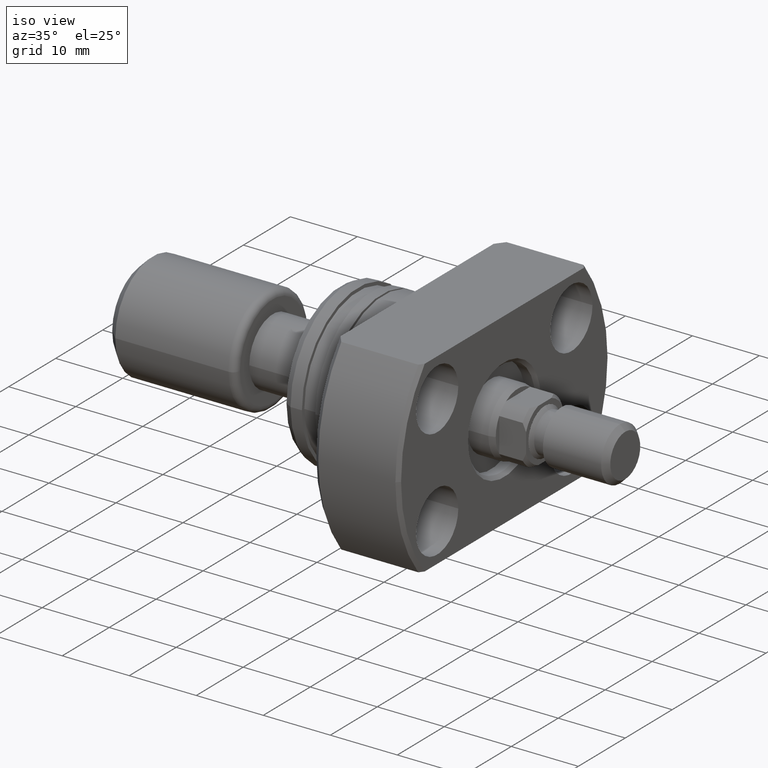
[diagram: clean part render]
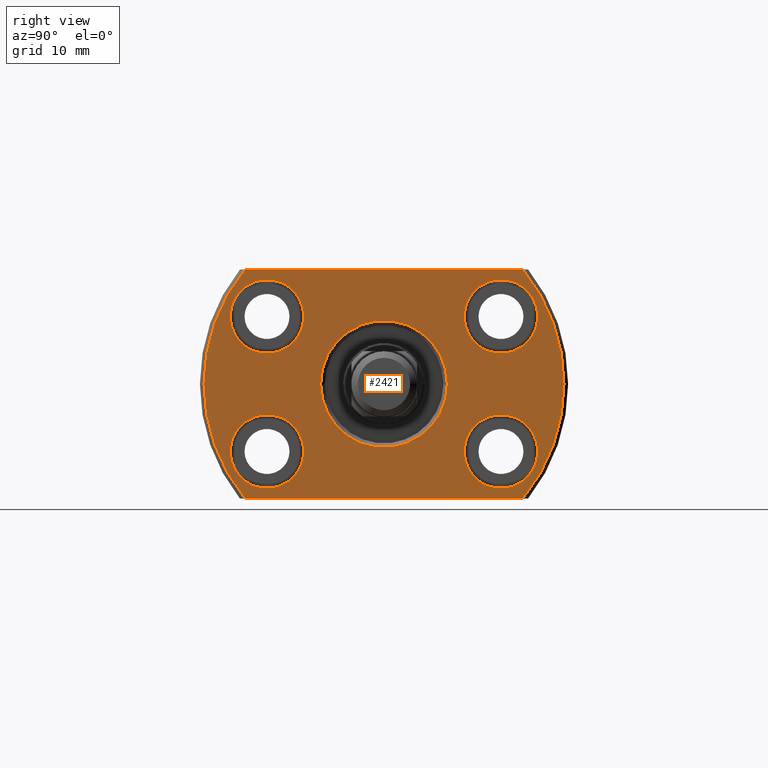
[diagram: tour spotlight — one face highlighted and labeled with its STEP entity id]
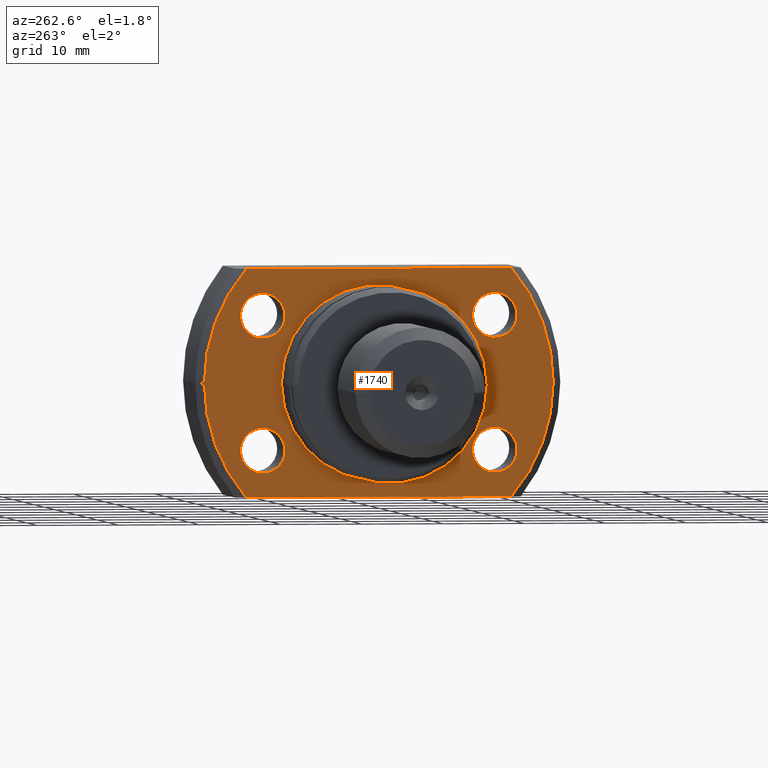
[diagram: tour spotlight — one face highlighted and labeled with its STEP entity id]
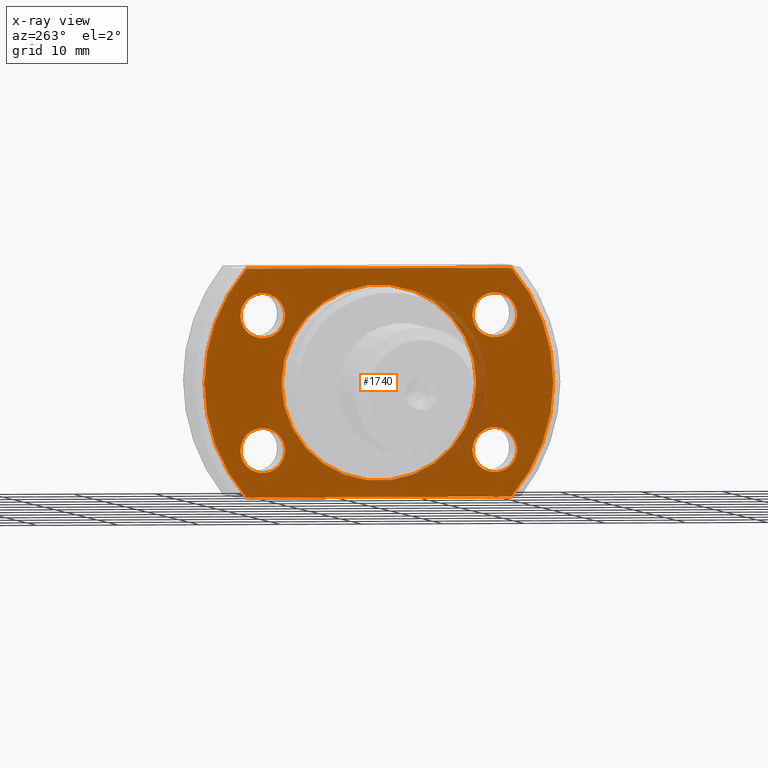
[diagram: x-ray of the same camera — body ghosted, this tour face saturated]
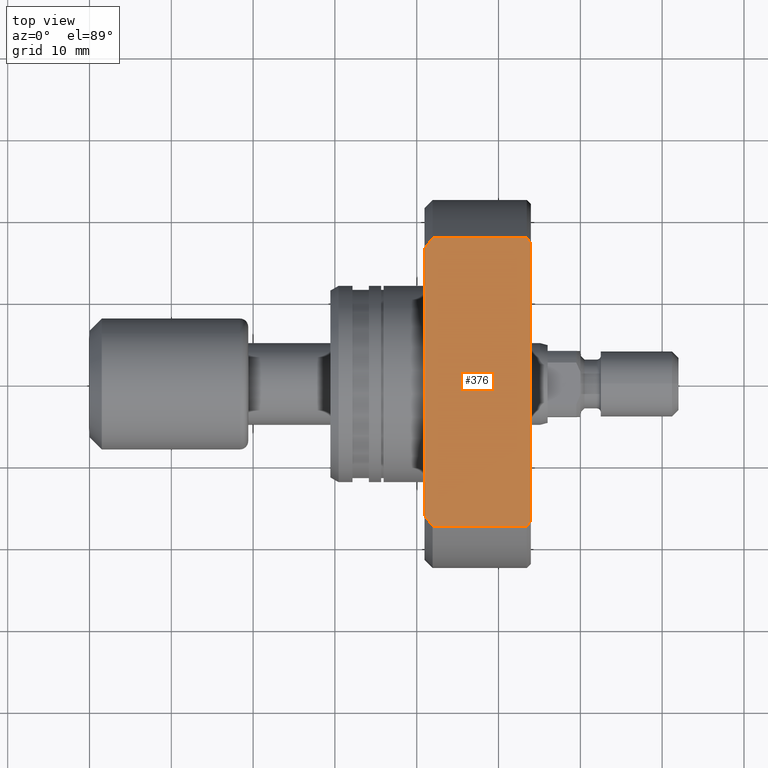
[diagram: tour spotlight — one face highlighted and labeled with its STEP entity id]
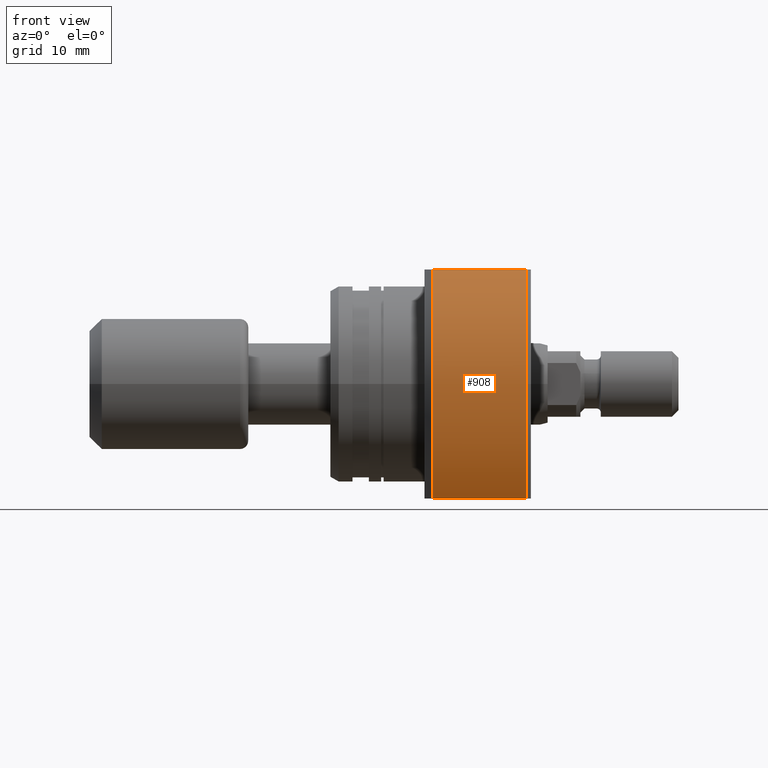
[diagram: tour spotlight — one face highlighted and labeled with its STEP entity id]
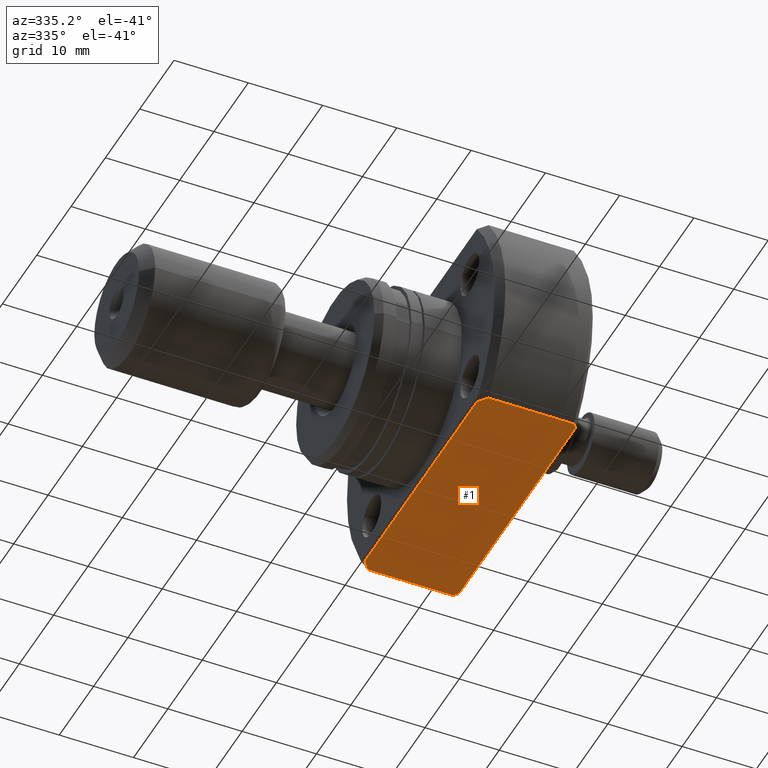
[diagram: tour spotlight — one face highlighted and labeled with its STEP entity id]
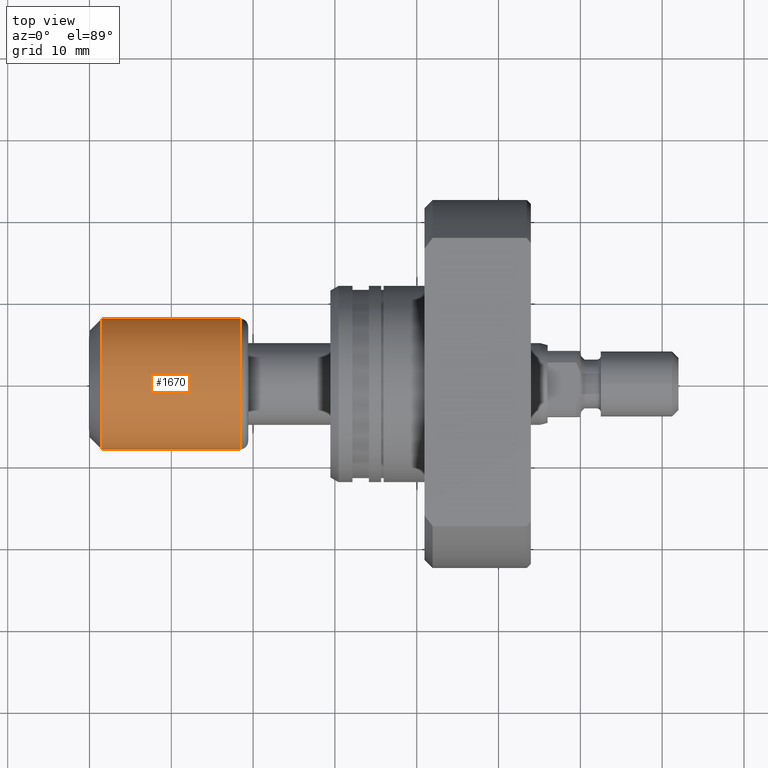
[diagram: tour spotlight — one face highlighted and labeled with its STEP entity id]
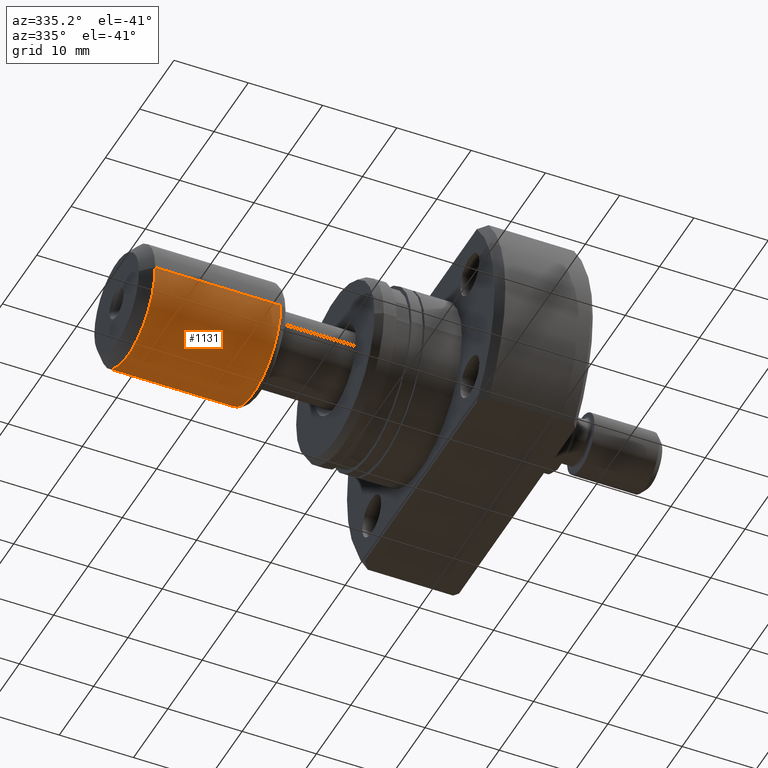
[diagram: tour spotlight — one face highlighted and labeled with its STEP entity id]
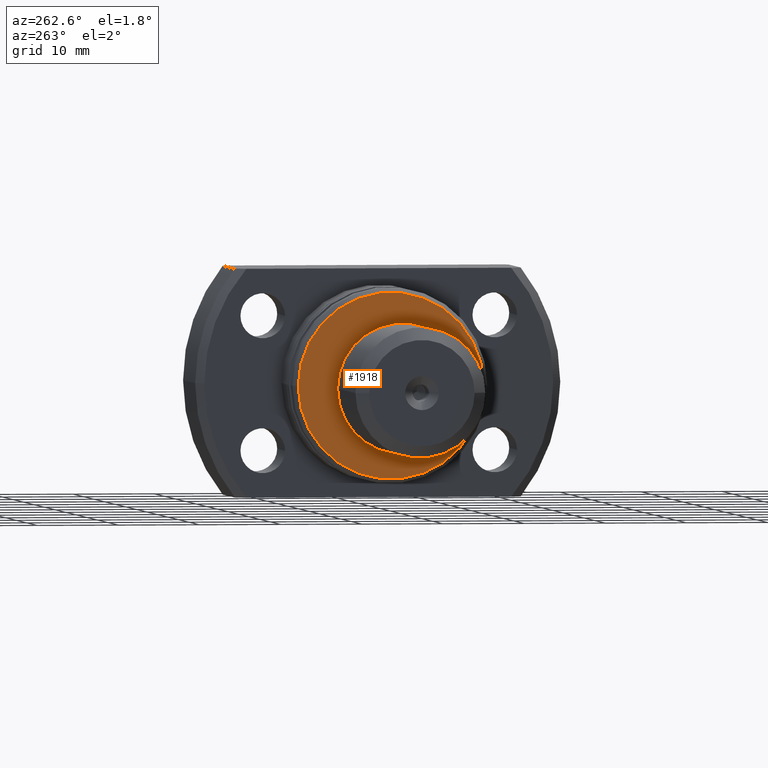
[diagram: tour spotlight — one face highlighted and labeled with its STEP entity id]
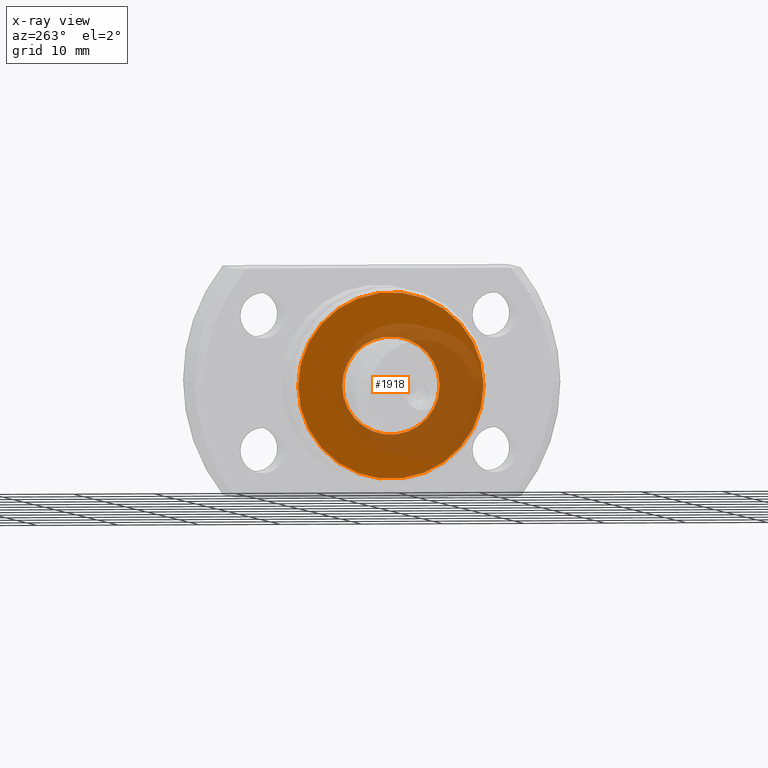
[diagram: x-ray of the same camera — body ghosted, this tour face saturated]
A machine part: a face-by-face anatomy tour. The part has 116 B-rep faces; the first image is the clean iso view, then the 8 largest visible faces are spotlighted one at a time (largest first), each with its STEP entity span.

Face 1 — right view, entity #2421. In plain terms, the highlighted planar face has unit normal (-1, -0, 0).
Definition (entity closure, byte-faithful):
#9 = ORIENTED_EDGE ( 'NONE', *, *, #1243, .F. ) ;
#14 = DIRECTION ( 'NONE',  ( 0.000000000000000000, -1.000000000000000000, 0.000000000000000000 ) ) ;
#65 = ORIENTED_EDGE ( 'NONE', *, *, #103, .F. ) ;
#69 = DIRECTION ( 'NONE',  ( 1.000000000000000000, -2.889258529047467066E-14, 0.000000000000000000 ) ) ;
#86 = CARTESIAN_POINT ( 'NONE',  ( 24.50000000000000000, -22.00000000000000000, 0.000000000000000000 ) ) ;
#93 = CARTESIAN_POINT ( 'NONE',  ( 24.49999999999958789, -14.30000000000070770, 8.250000000000000000 ) ) ;
#103 = EDGE_CURVE ( 'NONE', #1544, #2687, #2319, .T. ) ;
#163 = ORIENTED_EDGE ( 'NONE', *, *, #1608, .T. ) ;
#180 = CARTESIAN_POINT ( 'NONE',  ( 24.50000000000000000, -22.00000000000000000, 0.000000000000000000 ) ) ;
#189 = VERTEX_POINT ( 'NONE', #1052 ) ;
#202 = DIRECTION ( 'NONE',  ( 2.852656382717286247E-14, 1.000000000000000000, 0.000000000000000000 ) ) ;
#262 = CARTESIAN_POINT ( 'NONE',  ( 24.50000000000000000, 7.749999999998841815, 0.000000000000000000 ) ) ;
#293 = CARTESIAN_POINT ( 'NONE',  ( 24.50000000000000000, -7.071841973582562623E-13, 0.000000000000000000 ) ) ;
#369 = FACE_BOUND ( 'NONE', #2882, .T. ) ;
#381 = DIRECTION ( 'NONE',  ( 1.000000000000000000, -2.886466111666351885E-14, 0.000000000000000000 ) ) ;
#384 = ORIENTED_EDGE ( 'NONE', *, *, #1645, .F. ) ;
#401 = CIRCLE ( 'NONE', #3531, 4.500000000000205169 ) ;
#411 = DIRECTION ( 'NONE',  ( 0.000000000000000000, 1.000000000000000000, 0.000000000000000000 ) ) ;
#462 = AXIS2_PLACEMENT_3D ( 'NONE', #3212, #737, #1840 ) ;
#504 = EDGE_CURVE ( 'NONE', #3229, #3480, #551, .T. ) ;
#551 = CIRCLE ( 'NONE', #1263, 4.500000000000205169 ) ;
#564 = DIRECTION ( 'NONE',  ( 2.852656382717284985E-14, 1.000000000000000000, 0.000000000000000000 ) ) ;
#616 = CARTESIAN_POINT ( 'NONE',  ( 24.50000000000041211, 14.29999999999929194, 8.250000000000000000 ) ) ;
#621 = CIRCLE ( 'NONE', #2445, 4.500000000000205169 ) ;
#622 = DIRECTION ( 'NONE',  ( 1.000000000000000000, -2.889258529047467066E-14, 0.000000000000000000 ) ) ;
#625 = CIRCLE ( 'NONE', #3463, 4.500000000000205169 ) ;
#737 = DIRECTION ( 'NONE',  ( 1.000000000000000000, -2.889258529047467066E-14, 0.000000000000000000 ) ) ;
#807 = CARTESIAN_POINT ( 'NONE',  ( 24.50000000000041211, 14.29999999999929194, 8.250000000000000000 ) ) ;
#863 = LINE ( 'NONE', #3449, #3335 ) ;
#944 = FACE_OUTER_BOUND ( 'NONE', #2623, .T. ) ;
#948 = DIRECTION ( 'NONE',  ( 2.852656382717286247E-14, 1.000000000000000000, 0.000000000000000000 ) ) ;
#956 = EDGE_LOOP ( 'NONE', ( #1753, #1607 ) ) ;
#960 = DIRECTION ( 'NONE',  ( 2.852656382717286247E-14, 1.000000000000000000, 0.000000000000000000 ) ) ;
#978 = AXIS2_PLACEMENT_3D ( 'NONE', #3346, #1951, #2192 ) ;
#980 = CARTESIAN_POINT ( 'NONE',  ( 24.50000000000000000, 1.224646799150062051E-17, 0.000000000000000000 ) ) ;
#1035 = DIRECTION ( 'NONE',  ( 0.000000000000000000, 1.000000000000000000, 0.000000000000000000 ) ) ;
#1052 = CARTESIAN_POINT ( 'NONE',  ( 24.50000000000028422, 9.799999999999087663, -8.250000000000000000 ) ) ;
#1094 = VECTOR ( 'NONE', #1707, 1000.000000000000000 ) ;
#1095 = AXIS2_PLACEMENT_3D ( 'NONE', #1861, #2137, #411 ) ;
#1178 = ORIENTED_EDGE ( 'NONE', *, *, #1890, .T. ) ;
#1226 = CARTESIAN_POINT ( 'NONE',  ( 24.49999999999958789, -14.30000000000070770, -8.250000000000000000 ) ) ;
#1243 = EDGE_CURVE ( 'NONE', #1784, #189, #621, .T. ) ;
#1259 = VERTEX_POINT ( 'NONE', #3064 ) ;
#1261 = DIRECTION ( 'NONE',  ( 0.000000000000000000, -1.000000000000000000, 0.000000000000000000 ) ) ;
#1263 = AXIS2_PLACEMENT_3D ( 'NONE', #616, #381, #2955 ) ;
#1294 = CARTESIAN_POINT ( 'NONE',  ( 24.50000000000000000, 16.97056274847713553, 14.00000000000000355 ) ) ;
#1295 = CARTESIAN_POINT ( 'NONE',  ( 24.49999999999945999, -18.80000000000091376, 8.250000000000000000 ) ) ;
#1311 = CARTESIAN_POINT ( 'NONE',  ( 24.50000000000028422, 9.799999999999087663, 8.250000000000000000 ) ) ;
#1316 = EDGE_CURVE ( 'NONE', #1867, #3473, #1909, .T. ) ;
#1328 = CARTESIAN_POINT ( 'NONE',  ( 24.49999999999945999, -18.80000000000091376, -8.250000000000000000 ) ) ;
#1336 = CIRCLE ( 'NONE', #2157, 4.500000000000206946 ) ;
#1354 = EDGE_LOOP ( 'NONE', ( #9, #384 ) ) ;
#1375 = DIRECTION ( 'NONE',  ( 2.852656382717286247E-14, 1.000000000000000000, 0.000000000000000000 ) ) ;
#1436 = CARTESIAN_POINT ( 'NONE',  ( 24.50000000000000000, -22.00000000000000000, -14.00000000000000355 ) ) ;
#1481 = EDGE_CURVE ( 'NONE', #1760, #3456, #3398, .T. ) ;
#1488 = ORIENTED_EDGE ( 'NONE', *, *, #1481, .F. ) ;
#1494 = FACE_BOUND ( 'NONE', #2772, .T. ) ;
#1513 = AXIS2_PLACEMENT_3D ( 'NONE', #1226, #1716, #2868 ) ;
#1543 = DIRECTION ( 'NONE',  ( -1.000000000000000000, -4.998558363877804092E-19, 0.000000000000000000 ) ) ;
#1544 = VERTEX_POINT ( 'NONE', #1295 ) ;
#1545 = FACE_BOUND ( 'NONE', #3107, .T. ) ;
#1566 = AXIS2_PLACEMENT_3D ( 'NONE', #293, #2538, #14 ) ;
#1589 = ORIENTED_EDGE ( 'NONE', *, *, #3255, .F. ) ;
#1607 = ORIENTED_EDGE ( 'NONE', *, *, #3620, .F. ) ;
#1608 = EDGE_CURVE ( 'NONE', #2708, #3431, #2681, .T. ) ;
#1645 = EDGE_CURVE ( 'NONE', #189, #1784, #3052, .T. ) ;
#1682 = CARTESIAN_POINT ( 'NONE',  ( 24.50000000000000000, 16.97056274847713553, -14.00000000000000355 ) ) ;
#1707 = DIRECTION ( 'NONE',  ( -4.998558363877804092E-19, 1.000000000000000000, -0.000000000000000000 ) ) ;
#1716 = DIRECTION ( 'NONE',  ( 1.000000000000000000, -2.889258529047467066E-14, 0.000000000000000000 ) ) ;
#1734 = CIRCLE ( 'NONE', #1566, 7.749999999999547029 ) ;
#1753 = ORIENTED_EDGE ( 'NONE', *, *, #504, .F. ) ;
#1760 = VERTEX_POINT ( 'NONE', #1328 ) ;
#1784 = VERTEX_POINT ( 'NONE', #3341 ) ;
#1816 = CARTESIAN_POINT ( 'NONE',  ( 24.50000000000000000, -7.071841973582562623E-13, 0.000000000000000000 ) ) ;
#1840 = DIRECTION ( 'NONE',  ( 2.852656382717286247E-14, 1.000000000000000000, 0.000000000000000000 ) ) ;
#1861 = CARTESIAN_POINT ( 'NONE',  ( 24.50000000000000000, 1.224646799150062051E-17, 0.000000000000000000 ) ) ;
#1867 = VERTEX_POINT ( 'NONE', #2660 ) ;
#1890 = EDGE_CURVE ( 'NONE', #2648, #2207, #3581, .T. ) ;
#1909 = CIRCLE ( 'NONE', #978, 22.00000000000000000 ) ;
#1910 = ORIENTED_EDGE ( 'NONE', *, *, #1316, .T. ) ;
#1951 = DIRECTION ( 'NONE',  ( 1.000000000000000000, 4.998558363877804092E-19, -0.000000000000000000 ) ) ;
#2010 = EDGE_CURVE ( 'NONE', #2207, #2648, #1734, .T. ) ;
#2015 = ORIENTED_EDGE ( 'NONE', *, *, #2308, .F. ) ;
#2063 = DIRECTION ( 'NONE',  ( 4.998558363877804092E-19, -1.000000000000000000, 0.000000000000000000 ) ) ;
#2096 = AXIS2_PLACEMENT_3D ( 'NONE', #980, #2374, #1035 ) ;
#2116 = FACE_BOUND ( 'NONE', #956, .T. ) ;
#2137 = DIRECTION ( 'NONE',  ( 1.000000000000000000, 4.998558363877804092E-19, -0.000000000000000000 ) ) ;
#2157 = AXIS2_PLACEMENT_3D ( 'NONE', #3095, #622, #564 ) ;
#2192 = DIRECTION ( 'NONE',  ( 0.000000000000000000, 1.000000000000000000, 0.000000000000000000 ) ) ;
#2207 = VERTEX_POINT ( 'NONE', #3641 ) ;
#2222 = CIRCLE ( 'NONE', #2096, 22.00000000000000000 ) ;
#2239 = EDGE_CURVE ( 'NONE', #1259, #2708, #3132, .T. ) ;
#2308 = EDGE_CURVE ( 'NONE', #3456, #1760, #1336, .T. ) ;
#2309 = DIRECTION ( 'NONE',  ( 1.000000000000000000, -2.889258529047467066E-14, 0.000000000000000000 ) ) ;
#2319 = CIRCLE ( 'NONE', #2978, 4.500000000000205169 ) ;
#2340 = FACE_BOUND ( 'NONE', #1354, .T. ) ;
#2347 = EDGE_CURVE ( 'NONE', #1867, #3431, #863, .T. ) ;
#2374 = DIRECTION ( 'NONE',  ( 1.000000000000000000, 4.998558363877804092E-19, -0.000000000000000000 ) ) ;
#2421 = ADVANCED_FACE ( 'NONE', ( #369, #2116, #1545, #1494, #2340, #944 ), #2959, .F. ) ;
#2435 = CARTESIAN_POINT ( 'NONE',  ( 24.50000000000041211, 14.29999999999929194, -8.250000000000000000 ) ) ;
#2437 = ORIENTED_EDGE ( 'NONE', *, *, #2239, .T. ) ;
#2445 = AXIS2_PLACEMENT_3D ( 'NONE', #2435, #2727, #202 ) ;
#2448 = AXIS2_PLACEMENT_3D ( 'NONE', #1816, #1543, #1261 ) ;
#2484 = DIRECTION ( 'NONE',  ( 1.000000000000000000, -2.886466111666351885E-14, 0.000000000000000000 ) ) ;
#2538 = DIRECTION ( 'NONE',  ( -1.000000000000000000, -4.998558363877804092E-19, 0.000000000000000000 ) ) ;
#2560 = ORIENTED_EDGE ( 'NONE', *, *, #2010, .T. ) ;
#2595 = CARTESIAN_POINT ( 'NONE',  ( 24.49999999999958789, -14.30000000000070770, 8.250000000000000000 ) ) ;
#2623 = EDGE_LOOP ( 'NONE', ( #2972, #1910, #3026, #2437, #163 ) ) ;
#2648 = VERTEX_POINT ( 'NONE', #262 ) ;
#2660 = CARTESIAN_POINT ( 'NONE',  ( 24.50000000000000000, -16.97056274847713553, 14.00000000000000355 ) ) ;
#2681 = CIRCLE ( 'NONE', #1095, 22.00000000000000000 ) ;
#2687 = VERTEX_POINT ( 'NONE', #3352 ) ;
#2708 = VERTEX_POINT ( 'NONE', #1682 ) ;
#2727 = DIRECTION ( 'NONE',  ( 1.000000000000000000, -2.889258529047467066E-14, 0.000000000000000000 ) ) ;
#2772 = EDGE_LOOP ( 'NONE', ( #2015, #1488 ) ) ;
#2848 = CARTESIAN_POINT ( 'NONE',  ( 24.50000000000054357, 18.79999999999949623, 8.250000000000000000 ) ) ;
#2860 = DIRECTION ( 'NONE',  ( -0.000000000000000000, 1.000000000000000000, 0.000000000000000000 ) ) ;
#2868 = DIRECTION ( 'NONE',  ( 2.852656382717284985E-14, 1.000000000000000000, 0.000000000000000000 ) ) ;
#2882 = EDGE_LOOP ( 'NONE', ( #1178, #2560 ) ) ;
#2941 = DIRECTION ( 'NONE',  ( -1.000000000000000000, -4.998558363877804092E-19, 0.000000000000000000 ) ) ;
#2955 = DIRECTION ( 'NONE',  ( 2.852656382717286247E-14, 1.000000000000000000, 0.000000000000000000 ) ) ;
#2959 = PLANE ( 'NONE',  #2991 ) ;
#2972 = ORIENTED_EDGE ( 'NONE', *, *, #2347, .F. ) ;
#2978 = AXIS2_PLACEMENT_3D ( 'NONE', #2595, #69, #960 ) ;
#2991 = AXIS2_PLACEMENT_3D ( 'NONE', #86, #2941, #2063 ) ;
#2998 = CARTESIAN_POINT ( 'NONE',  ( 24.49999999999971578, -9.800000000000501643, -8.250000000000000000 ) ) ;
#3026 = ORIENTED_EDGE ( 'NONE', *, *, #3343, .T. ) ;
#3052 = CIRCLE ( 'NONE', #462, 4.500000000000205169 ) ;
#3064 = CARTESIAN_POINT ( 'NONE',  ( 24.50000000000000000, -16.97056274847713553, -14.00000000000000355 ) ) ;
#3095 = CARTESIAN_POINT ( 'NONE',  ( 24.49999999999958789, -14.30000000000070770, -8.250000000000000000 ) ) ;
#3107 = EDGE_LOOP ( 'NONE', ( #1589, #65 ) ) ;
#3132 = LINE ( 'NONE', #1436, #1094 ) ;
#3212 = CARTESIAN_POINT ( 'NONE',  ( 24.50000000000041211, 14.29999999999929194, -8.250000000000000000 ) ) ;
#3229 = VERTEX_POINT ( 'NONE', #2848 ) ;
#3255 = EDGE_CURVE ( 'NONE', #2687, #1544, #401, .T. ) ;
#3335 = VECTOR ( 'NONE', #2860, 1000.000000000000000 ) ;
#3341 = CARTESIAN_POINT ( 'NONE',  ( 24.50000000000054357, 18.79999999999949623, -8.250000000000000000 ) ) ;
#3343 = EDGE_CURVE ( 'NONE', #3473, #1259, #2222, .T. ) ;
#3346 = CARTESIAN_POINT ( 'NONE',  ( 24.50000000000000000, 1.224646799150062051E-17, 0.000000000000000000 ) ) ;
#3352 = CARTESIAN_POINT ( 'NONE',  ( 24.49999999999971578, -9.800000000000503420, 8.250000000000000000 ) ) ;
#3398 = CIRCLE ( 'NONE', #1513, 4.500000000000206946 ) ;
#3431 = VERTEX_POINT ( 'NONE', #1294 ) ;
#3449 = CARTESIAN_POINT ( 'NONE',  ( 24.50000000000000000, 17.61391495380915018, 14.00000000000000355 ) ) ;
#3456 = VERTEX_POINT ( 'NONE', #2998 ) ;
#3463 = AXIS2_PLACEMENT_3D ( 'NONE', #807, #2484, #1375 ) ;
#3473 = VERTEX_POINT ( 'NONE', #180 ) ;
#3480 = VERTEX_POINT ( 'NONE', #1311 ) ;
#3531 = AXIS2_PLACEMENT_3D ( 'NONE', #93, #2309, #948 ) ;
#3581 = CIRCLE ( 'NONE', #2448, 7.749999999999547029 ) ;
#3620 = EDGE_CURVE ( 'NONE', #3480, #3229, #625, .T. ) ;
#3641 = CARTESIAN_POINT ( 'NONE',  ( 24.50000000000000000, -7.750000000000701661, 9.491012693391979898E-16 ) ) ;

Face 2 — auxiliary view, entity #1740. An x-ray twin of the same camera follows (body ghosted, this face saturated) — the face is partly hidden behind the body. In plain terms, the highlighted planar face has unit normal (1, 0, 0).
Definition (entity closure, byte-faithful):
#40 = CARTESIAN_POINT ( 'NONE',  ( 11.49999999999978506, -14.30000000000032401, -8.249999999999996447 ) ) ;
#53 = LINE ( 'NONE', #3396, #1975 ) ;
#62 = CARTESIAN_POINT ( 'NONE',  ( 11.49999999999978684, -16.31716887208061095, -14.00000000000000355 ) ) ;
#74 = EDGE_CURVE ( 'NONE', #2611, #2474, #2859, .T. ) ;
#80 = CIRCLE ( 'NONE', #845, 11.99999999999999467 ) ;
#129 = CARTESIAN_POINT ( 'NONE',  ( 11.49999999999978861, 5.748342118459368684E-18, 0.000000000000000000 ) ) ;
#130 = CARTESIAN_POINT ( 'NONE',  ( 11.49999999999978506, -11.99999999999999467, -14.00000000000000355 ) ) ;
#136 = EDGE_CURVE ( 'NONE', #1016, #1074, #909, .T. ) ;
#142 = ORIENTED_EDGE ( 'NONE', *, *, #1112, .T. ) ;
#171 = ORIENTED_EDGE ( 'NONE', *, *, #1428, .T. ) ;
#236 = EDGE_CURVE ( 'NONE', #1939, #2939, #80, .T. ) ;
#252 = FACE_OUTER_BOUND ( 'NONE', #3199, .T. ) ;
#281 = EDGE_CURVE ( 'NONE', #1478, #2377, #2378, .T. ) ;
#317 = CARTESIAN_POINT ( 'NONE',  ( 11.49999999999978506, -11.55000000000032756, 8.250000000000003553 ) ) ;
#352 = VERTEX_POINT ( 'NONE', #1432 ) ;
#398 = CARTESIAN_POINT ( 'NONE',  ( 11.49999999999978506, 17.04999999999967031, -8.249999999999996447 ) ) ;
#438 = CARTESIAN_POINT ( 'NONE',  ( 11.49999999999978861, 21.49999999999992184, 0.000000000000000000 ) ) ;
#444 = DIRECTION ( 'NONE',  ( 1.000000000000000000, 4.998558363877804092E-19, -0.000000000000000000 ) ) ;
#466 = ORIENTED_EDGE ( 'NONE', *, *, #236, .T. ) ;
#473 = DIRECTION ( 'NONE',  ( 0.000000000000000000, 1.000000000000000000, 0.000000000000000000 ) ) ;
#478 = DIRECTION ( 'NONE',  ( 1.000000000000000000, 4.998558363877804092E-19, -0.000000000000000000 ) ) ;
#485 = CARTESIAN_POINT ( 'NONE',  ( 11.49999999999977973, 5.748342118459364061E-18, 0.000000000000000000 ) ) ;
#491 = ORIENTED_EDGE ( 'NONE', *, *, #1547, .F. ) ;
#503 = AXIS2_PLACEMENT_3D ( 'NONE', #129, #478, #3538 ) ;
#592 = DIRECTION ( 'NONE',  ( 0.000000000000000000, 1.000000000000000000, 0.000000000000000000 ) ) ;
#602 = CARTESIAN_POINT ( 'NONE',  ( 11.49999999999977973, 11.99999999999999467, 0.000000000000000000 ) ) ;
#607 = CARTESIAN_POINT ( 'NONE',  ( 11.49999999999978506, 14.29999999999967208, 8.250000000000003553 ) ) ;
#610 = ORIENTED_EDGE ( 'NONE', *, *, #136, .T. ) ;
#702 = DIRECTION ( 'NONE',  ( 0.000000000000000000, 1.000000000000000000, 0.000000000000000000 ) ) ;
#771 = CARTESIAN_POINT ( 'NONE',  ( 11.49999999999977973, 5.748342118459364061E-18, 0.000000000000000000 ) ) ;
#796 = AXIS2_PLACEMENT_3D ( 'NONE', #3297, #3055, #1851 ) ;
#826 = ORIENTED_EDGE ( 'NONE', *, *, #74, .F. ) ;
#845 = AXIS2_PLACEMENT_3D ( 'NONE', #485, #1837, #473 ) ;
#870 = VERTEX_POINT ( 'NONE', #1075 ) ;
#909 = CIRCLE ( 'NONE', #3323, 2.749999999999999112 ) ;
#973 = CARTESIAN_POINT ( 'NONE',  ( 11.49999999999978506, -17.05000000000032756, 8.250000000000003553 ) ) ;
#975 = DIRECTION ( 'NONE',  ( 0.000000000000000000, 1.000000000000000000, 0.000000000000000000 ) ) ;
#1016 = VERTEX_POINT ( 'NONE', #3141 ) ;
#1027 = EDGE_LOOP ( 'NONE', ( #1761, #610 ) ) ;
#1074 = VERTEX_POINT ( 'NONE', #398 ) ;
#1075 = CARTESIAN_POINT ( 'NONE',  ( 11.49999999999978506, -17.05000000000032045, -8.249999999999996447 ) ) ;
#1105 = FACE_BOUND ( 'NONE', #2765, .T. ) ;
#1112 = EDGE_CURVE ( 'NONE', #2611, #2763, #2951, .T. ) ;
#1119 = ORIENTED_EDGE ( 'NONE', *, *, #1605, .F. ) ;
#1125 = EDGE_LOOP ( 'NONE', ( #2462, #1372 ) ) ;
#1196 = VERTEX_POINT ( 'NONE', #2124 ) ;
#1219 = DIRECTION ( 'NONE',  ( 1.000000000000000000, 4.998558363877804092E-19, -0.000000000000000000 ) ) ;
#1225 = DIRECTION ( 'NONE',  ( 0.000000000000000000, 1.000000000000000000, 0.000000000000000000 ) ) ;
#1267 = DIRECTION ( 'NONE',  ( 1.000000000000000000, 4.998558363877804092E-19, -0.000000000000000000 ) ) ;
#1275 = CARTESIAN_POINT ( 'NONE',  ( 11.49999999999978861, 5.748342118459368684E-18, 0.000000000000000000 ) ) ;
#1281 = CIRCLE ( 'NONE', #3225, 2.750000000000000888 ) ;
#1372 = ORIENTED_EDGE ( 'NONE', *, *, #2989, .T. ) ;
#1376 = DIRECTION ( 'NONE',  ( 0.000000000000000000, 1.000000000000000000, 0.000000000000000000 ) ) ;
#1380 = DIRECTION ( 'NONE',  ( 1.000000000000000000, 4.998558363877804092E-19, -0.000000000000000000 ) ) ;
#1407 = ORIENTED_EDGE ( 'NONE', *, *, #1969, .F. ) ;
#1428 = EDGE_CURVE ( 'NONE', #3342, #1196, #2449, .T. ) ;
#1432 = CARTESIAN_POINT ( 'NONE',  ( 11.49999999999978506, -11.55000000000032756, -8.249999999999996447 ) ) ;
#1478 = VERTEX_POINT ( 'NONE', #317 ) ;
#1495 = DIRECTION ( 'NONE',  ( 0.000000000000000000, 1.000000000000000000, 0.000000000000000000 ) ) ;
#1515 = CARTESIAN_POINT ( 'NONE',  ( 11.49999999999978506, 14.29999999999967031, -8.249999999999996447 ) ) ;
#1547 = EDGE_CURVE ( 'NONE', #2915, #2763, #2153, .T. ) ;
#1548 = CARTESIAN_POINT ( 'NONE',  ( 11.49999999999978506, 11.54999999999967208, 8.250000000000003553 ) ) ;
#1605 = EDGE_CURVE ( 'NONE', #2474, #3637, #3336, .T. ) ;
#1687 = CIRCLE ( 'NONE', #1866, 2.749999999999997335 ) ;
#1717 = EDGE_CURVE ( 'NONE', #2939, #1939, #3594, .T. ) ;
#1729 = CARTESIAN_POINT ( 'NONE',  ( 11.49999999999978506, 14.29999999999967208, 8.250000000000003553 ) ) ;
#1740 = ADVANCED_FACE ( 'NONE', ( #3319, #1105, #1965, #3593, #2251, #252 ), #3623, .F. ) ;
#1761 = ORIENTED_EDGE ( 'NONE', *, *, #2527, .T. ) ;
#1837 = DIRECTION ( 'NONE',  ( 1.000000000000000000, 4.998558363877804092E-19, -0.000000000000000000 ) ) ;
#1851 = DIRECTION ( 'NONE',  ( 0.000000000000000000, 1.000000000000000000, 0.000000000000000000 ) ) ;
#1866 = AXIS2_PLACEMENT_3D ( 'NONE', #1950, #1380, #2985 ) ;
#1868 = ORIENTED_EDGE ( 'NONE', *, *, #1717, .T. ) ;
#1887 = DIRECTION ( 'NONE',  ( 0.000000000000000000, 1.000000000000000000, 0.000000000000000000 ) ) ;
#1914 = AXIS2_PLACEMENT_3D ( 'NONE', #1275, #444, #702 ) ;
#1920 = CIRCLE ( 'NONE', #2398, 2.749999999999997335 ) ;
#1931 = DIRECTION ( 'NONE',  ( 1.000000000000000000, 4.998558363877804092E-19, -0.000000000000000000 ) ) ;
#1939 = VERTEX_POINT ( 'NONE', #602 ) ;
#1950 = CARTESIAN_POINT ( 'NONE',  ( 11.49999999999978506, -14.30000000000032401, -8.249999999999996447 ) ) ;
#1960 = EDGE_CURVE ( 'NONE', #2377, #1478, #2867, .T. ) ;
#1965 = FACE_BOUND ( 'NONE', #1125, .T. ) ;
#1969 = EDGE_CURVE ( 'NONE', #3637, #2915, #53, .T. ) ;
#1975 = VECTOR ( 'NONE', #2351, 1000.000000000000000 ) ;
#1985 = ORIENTED_EDGE ( 'NONE', *, *, #3123, .T. ) ;
#1987 = AXIS2_PLACEMENT_3D ( 'NONE', #771, #1931, #1376 ) ;
#1990 = DIRECTION ( 'NONE',  ( 1.000000000000000000, 4.998558363877804092E-19, -0.000000000000000000 ) ) ;
#2008 = DIRECTION ( 'NONE',  ( 1.000000000000000000, 4.998558363877804092E-19, -0.000000000000000000 ) ) ;
#2021 = AXIS2_PLACEMENT_3D ( 'NONE', #2902, #1219, #1495 ) ;
#2124 = CARTESIAN_POINT ( 'NONE',  ( 11.49999999999978506, 17.04999999999967386, 8.250000000000003553 ) ) ;
#2152 = AXIS2_PLACEMENT_3D ( 'NONE', #2752, #2783, #2485 ) ;
#2153 = CIRCLE ( 'NONE', #503, 21.49999999999992184 ) ;
#2251 = FACE_BOUND ( 'NONE', #3058, .T. ) ;
#2275 = DIRECTION ( 'NONE',  ( 1.000000000000000000, 4.998558363877804092E-19, -0.000000000000000000 ) ) ;
#2323 = DIRECTION ( 'NONE',  ( 1.000000000000000000, 4.998558363877804092E-19, -0.000000000000000000 ) ) ;
#2351 = DIRECTION ( 'NONE',  ( 4.998558363877804092E-19, -1.000000000000000000, 0.000000000000000000 ) ) ;
#2362 = CARTESIAN_POINT ( 'NONE',  ( 11.49999999999977973, -11.99999999999999467, 1.469576158976823356E-15 ) ) ;
#2377 = VERTEX_POINT ( 'NONE', #973 ) ;
#2378 = CIRCLE ( 'NONE', #3451, 2.750000000000000888 ) ;
#2398 = AXIS2_PLACEMENT_3D ( 'NONE', #40, #2008, #3138 ) ;
#2412 = DIRECTION ( 'NONE',  ( 1.000000000000000000, 4.998558363877804092E-19, -0.000000000000000000 ) ) ;
#2449 = CIRCLE ( 'NONE', #3640, 2.750000000000000888 ) ;
#2462 = ORIENTED_EDGE ( 'NONE', *, *, #3300, .T. ) ;
#2474 = VERTEX_POINT ( 'NONE', #438 ) ;
#2485 = DIRECTION ( 'NONE',  ( -4.998558363877804092E-19, 1.000000000000000000, 0.000000000000000000 ) ) ;
#2518 = ORIENTED_EDGE ( 'NONE', *, *, #1960, .T. ) ;
#2527 = EDGE_CURVE ( 'NONE', #1074, #1016, #3039, .T. ) ;
#2581 = CARTESIAN_POINT ( 'NONE',  ( 11.49999999999978506, -14.30000000000032756, 8.250000000000003553 ) ) ;
#2611 = VERTEX_POINT ( 'NONE', #3585 ) ;
#2655 = DIRECTION ( 'NONE',  ( 4.998558363877804092E-19, -1.000000000000000000, 0.000000000000000000 ) ) ;
#2672 = CARTESIAN_POINT ( 'NONE',  ( 11.49999999999978684, -16.31716887208061095, 14.00000000000000355 ) ) ;
#2675 = AXIS2_PLACEMENT_3D ( 'NONE', #2581, #1990, #2956 ) ;
#2752 = CARTESIAN_POINT ( 'NONE',  ( 11.49999999999978506, -11.99999999999999467, 0.000000000000000000 ) ) ;
#2763 = VERTEX_POINT ( 'NONE', #62 ) ;
#2765 = EDGE_LOOP ( 'NONE', ( #3269, #2518 ) ) ;
#2783 = DIRECTION ( 'NONE',  ( 1.000000000000000000, 4.998558363877804092E-19, -0.000000000000000000 ) ) ;
#2806 = VECTOR ( 'NONE', #2655, 1000.000000000000000 ) ;
#2859 = CIRCLE ( 'NONE', #2021, 21.49999999999992184 ) ;
#2867 = CIRCLE ( 'NONE', #2675, 2.750000000000000888 ) ;
#2902 = CARTESIAN_POINT ( 'NONE',  ( 11.49999999999978861, 5.748342118459368684E-18, 0.000000000000000000 ) ) ;
#2915 = VERTEX_POINT ( 'NONE', #2672 ) ;
#2939 = VERTEX_POINT ( 'NONE', #2362 ) ;
#2951 = LINE ( 'NONE', #130, #2806 ) ;
#2956 = DIRECTION ( 'NONE',  ( 0.000000000000000000, 1.000000000000000000, 0.000000000000000000 ) ) ;
#2985 = DIRECTION ( 'NONE',  ( 0.000000000000000000, 1.000000000000000000, 0.000000000000000000 ) ) ;
#2989 = EDGE_CURVE ( 'NONE', #870, #352, #1687, .T. ) ;
#3039 = CIRCLE ( 'NONE', #796, 2.749999999999999112 ) ;
#3055 = DIRECTION ( 'NONE',  ( 1.000000000000000000, 4.998558363877804092E-19, -0.000000000000000000 ) ) ;
#3058 = EDGE_LOOP ( 'NONE', ( #466, #1868 ) ) ;
#3123 = EDGE_CURVE ( 'NONE', #1196, #3342, #1281, .T. ) ;
#3138 = DIRECTION ( 'NONE',  ( 0.000000000000000000, 1.000000000000000000, 0.000000000000000000 ) ) ;
#3141 = CARTESIAN_POINT ( 'NONE',  ( 11.49999999999978506, 11.54999999999967208, -8.249999999999996447 ) ) ;
#3199 = EDGE_LOOP ( 'NONE', ( #1407, #1119, #826, #142, #491 ) ) ;
#3224 = EDGE_LOOP ( 'NONE', ( #1985, #171 ) ) ;
#3225 = AXIS2_PLACEMENT_3D ( 'NONE', #1729, #2323, #1225 ) ;
#3269 = ORIENTED_EDGE ( 'NONE', *, *, #281, .T. ) ;
#3297 = CARTESIAN_POINT ( 'NONE',  ( 11.49999999999978506, 14.29999999999967031, -8.249999999999996447 ) ) ;
#3300 = EDGE_CURVE ( 'NONE', #352, #870, #1920, .T. ) ;
#3319 = FACE_BOUND ( 'NONE', #3224, .T. ) ;
#3323 = AXIS2_PLACEMENT_3D ( 'NONE', #1515, #1267, #975 ) ;
#3336 = CIRCLE ( 'NONE', #1914, 21.49999999999992184 ) ;
#3342 = VERTEX_POINT ( 'NONE', #1548 ) ;
#3396 = CARTESIAN_POINT ( 'NONE',  ( 11.49999999999978506, -11.99999999999999467, 14.00000000000000355 ) ) ;
#3418 = CARTESIAN_POINT ( 'NONE',  ( 11.49999999999978861, 16.31716887208061095, 14.00000000000000355 ) ) ;
#3451 = AXIS2_PLACEMENT_3D ( 'NONE', #3604, #2412, #1887 ) ;
#3538 = DIRECTION ( 'NONE',  ( 0.000000000000000000, 1.000000000000000000, 0.000000000000000000 ) ) ;
#3585 = CARTESIAN_POINT ( 'NONE',  ( 11.49999999999978861, 16.31716887208061095, -14.00000000000000355 ) ) ;
#3593 = FACE_BOUND ( 'NONE', #1027, .T. ) ;
#3594 = CIRCLE ( 'NONE', #1987, 11.99999999999999467 ) ;
#3604 = CARTESIAN_POINT ( 'NONE',  ( 11.49999999999978506, -14.30000000000032756, 8.250000000000003553 ) ) ;
#3623 = PLANE ( 'NONE',  #2152 ) ;
#3637 = VERTEX_POINT ( 'NONE', #3418 ) ;
#3640 = AXIS2_PLACEMENT_3D ( 'NONE', #607, #2275, #592 ) ;

Face 3 — top view, entity #376. In plain terms, the highlighted planar face has unit normal (0, 0, 1).
Definition (entity closure, byte-faithful):
#53 = LINE ( 'NONE', #3396, #1975 ) ;
#100 = DIRECTION ( 'NONE',  ( 1.000000000000000000, -2.886466111666351885E-14, -0.000000000000000000 ) ) ;
#279 = CARTESIAN_POINT ( 'NONE',  ( 12.49999999999977263, 17.61391495380878425, 13.99999999999999645 ) ) ;
#342 = CARTESIAN_POINT ( 'NONE',  ( 24.50000000000000000, -16.97056274847713553, 14.00000000000000355 ) ) ;
#356 = EDGE_LOOP ( 'NONE', ( #776, #3076, #3657, #3613, #359, #3146, #2212, #3188 ) ) ;
#359 = ORIENTED_EDGE ( 'NONE', *, *, #3177, .T. ) ;
#376 = ADVANCED_FACE ( 'NONE', ( #1116 ), #836, .T. ) ;
#427 = B_SPLINE_CURVE_WITH_KNOTS ( 'NONE', 3,
 ( #2424, #3598, #3527, #2128 ),
 .UNSPECIFIED., .F., .F.,
 ( 4, 4 ),
 ( 0.06706314534022636553, 0.06787700449519981638 ),
 .UNSPECIFIED. ) ;
#691 = CARTESIAN_POINT ( 'NONE',  ( 24.00000000000007461, 17.61391495380845029, 13.99999999999999645 ) ) ;
#732 = EDGE_CURVE ( 'NONE', #3431, #2891, #427, .T. ) ;
#736 = CARTESIAN_POINT ( 'NONE',  ( 12.16362554919180994, -17.18423051607681984, 14.00000000000000355 ) ) ;
#749 = CARTESIAN_POINT ( 'NONE',  ( 11.49999999999978861, 16.31716887208061095, 14.00000000000000355 ) ) ;
#776 = ORIENTED_EDGE ( 'NONE', *, *, #3018, .T. ) ;
#800 = DIRECTION ( 'NONE',  ( 1.000000000000000000, 0.000000000000000000, -0.000000000000000000 ) ) ;
#813 = VERTEX_POINT ( 'NONE', #1657 ) ;
#827 = CARTESIAN_POINT ( 'NONE',  ( 12.16342151182557352, 17.18396987891851424, 14.00000000000000355 ) ) ;
#836 = PLANE ( 'NONE',  #2553 ) ;
#863 = LINE ( 'NONE', #3449, #3335 ) ;
#942 = EDGE_CURVE ( 'NONE', #3096, #813, #2544, .T. ) ;
#1001 = CARTESIAN_POINT ( 'NONE',  ( 11.49999999999978684, -16.31716887208061095, 14.00000000000000355 ) ) ;
#1014 = CARTESIAN_POINT ( 'NONE',  ( 11.83011165526848885, -16.75213407002135213, 14.00000000000000355 ) ) ;
#1067 = EDGE_CURVE ( 'NONE', #2262, #2891, #2619, .T. ) ;
#1116 = FACE_OUTER_BOUND ( 'NONE', #356, .T. ) ;
#1149 = CARTESIAN_POINT ( 'NONE',  ( -1.162264728904460753E-12, -17.61391495380774685, 14.00000000000001066 ) ) ;
#1204 = CARTESIAN_POINT ( 'NONE',  ( 24.00000000000007461, -17.61391495380843963, 14.00000000000001066 ) ) ;
#1294 = CARTESIAN_POINT ( 'NONE',  ( 24.50000000000000000, 16.97056274847713553, 14.00000000000000355 ) ) ;
#1620 = VECTOR ( 'NONE', #100, 1000.000000000000000 ) ;
#1657 = CARTESIAN_POINT ( 'NONE',  ( 24.00000000000007461, -17.61391495380843963, 14.00000000000001066 ) ) ;
#1791 = CARTESIAN_POINT ( 'NONE',  ( -1.422473250300981817E-13, 17.61391495380914307, 13.99999999999999645 ) ) ;
#1859 = CARTESIAN_POINT ( 'NONE',  ( 12.49999999999977263, -17.61391495380810568, 14.00000000000001066 ) ) ;
#1867 = VERTEX_POINT ( 'NONE', #2660 ) ;
#1956 = CARTESIAN_POINT ( 'NONE',  ( -1.422473250300981817E-13, 17.61391495380915018, 14.00000000000000355 ) ) ;
#1969 = EDGE_CURVE ( 'NONE', #3637, #2915, #53, .T. ) ;
#1975 = VECTOR ( 'NONE', #2351, 1000.000000000000000 ) ;
#2128 = CARTESIAN_POINT ( 'NONE',  ( 24.00000000000007461, 17.61391495380845029, 13.99999999999999645 ) ) ;
#2212 = ORIENTED_EDGE ( 'NONE', *, *, #732, .T. ) ;
#2262 = VERTEX_POINT ( 'NONE', #3149 ) ;
#2277 = DIRECTION ( 'NONE',  ( 1.000000000000000000, -2.886466111666351885E-14, -0.000000000000000000 ) ) ;
#2347 = EDGE_CURVE ( 'NONE', #1867, #3431, #863, .T. ) ;
#2351 = DIRECTION ( 'NONE',  ( 4.998558363877804092E-19, -1.000000000000000000, 0.000000000000000000 ) ) ;
#2424 = CARTESIAN_POINT ( 'NONE',  ( 24.50000000000000000, 16.97056274847713553, 14.00000000000000355 ) ) ;
#2525 = CARTESIAN_POINT ( 'NONE',  ( 12.49999999999977263, -17.61391495380810568, 14.00000000000001066 ) ) ;
#2544 = LINE ( 'NONE', #1149, #3092 ) ;
#2553 = AXIS2_PLACEMENT_3D ( 'NONE', #1956, #2855, #800 ) ;
#2619 = LINE ( 'NONE', #1791, #1620 ) ;
#2637 = B_SPLINE_CURVE_WITH_KNOTS ( 'NONE', 3,
 ( #1204, #3423, #2906, #342 ),
 .UNSPECIFIED., .F., .F.,
 ( 4, 4 ),
 ( 0.02824287035670665011, 0.02906016577245322530 ),
 .UNSPECIFIED. ) ;
#2660 = CARTESIAN_POINT ( 'NONE',  ( 24.50000000000000000, -16.97056274847713553, 14.00000000000000355 ) ) ;
#2672 = CARTESIAN_POINT ( 'NONE',  ( 11.49999999999978684, -16.31716887208061095, 14.00000000000000355 ) ) ;
#2710 = B_SPLINE_CURVE_WITH_KNOTS ( 'NONE', 3,
 ( #1001, #1014, #736, #1859 ),
 .UNSPECIFIED., .F., .F.,
 ( 4, 4 ),
 ( 0.06624998678667230745, 0.06788534956766804906 ),
 .UNSPECIFIED. ) ;
#2855 = DIRECTION ( 'NONE',  ( 0.000000000000000000, 0.000000000000000000, 1.000000000000000000 ) ) ;
#2860 = DIRECTION ( 'NONE',  ( -0.000000000000000000, 1.000000000000000000, 0.000000000000000000 ) ) ;
#2891 = VERTEX_POINT ( 'NONE', #691 ) ;
#2906 = CARTESIAN_POINT ( 'NONE',  ( 24.33413566286970564, -17.18558304397054926, 14.00000000000000355 ) ) ;
#2915 = VERTEX_POINT ( 'NONE', #2672 ) ;
#2961 = B_SPLINE_CURVE_WITH_KNOTS ( 'NONE', 3,
 ( #279, #827, #3650, #749 ),
 .UNSPECIFIED., .F., .F.,
 ( 4, 4 ),
 ( 0.02825164645976066535, 0.02989446144990340337 ),
 .UNSPECIFIED. ) ;
#3018 = EDGE_CURVE ( 'NONE', #2262, #3637, #2961, .T. ) ;
#3076 = ORIENTED_EDGE ( 'NONE', *, *, #1969, .T. ) ;
#3092 = VECTOR ( 'NONE', #2277, 1000.000000000000000 ) ;
#3096 = VERTEX_POINT ( 'NONE', #2525 ) ;
#3146 = ORIENTED_EDGE ( 'NONE', *, *, #2347, .T. ) ;
#3149 = CARTESIAN_POINT ( 'NONE',  ( 12.49999999999977263, 17.61391495380878425, 13.99999999999999645 ) ) ;
#3177 = EDGE_CURVE ( 'NONE', #813, #1867, #2637, .T. ) ;
#3188 = ORIENTED_EDGE ( 'NONE', *, *, #1067, .F. ) ;
#3335 = VECTOR ( 'NONE', #2860, 1000.000000000000000 ) ;
#3396 = CARTESIAN_POINT ( 'NONE',  ( 11.49999999999978506, -11.99999999999999467, 14.00000000000000355 ) ) ;
#3418 = CARTESIAN_POINT ( 'NONE',  ( 11.49999999999978861, 16.31716887208061095, 14.00000000000000355 ) ) ;
#3423 = CARTESIAN_POINT ( 'NONE',  ( 24.16744706737967618, -17.40001821217426681, 14.00000000000000355 ) ) ;
#3431 = VERTEX_POINT ( 'NONE', #1294 ) ;
#3439 = EDGE_CURVE ( 'NONE', #2915, #3096, #2710, .T. ) ;
#3449 = CARTESIAN_POINT ( 'NONE',  ( 24.50000000000000000, 17.61391495380915018, 14.00000000000000355 ) ) ;
#3527 = CARTESIAN_POINT ( 'NONE',  ( 24.16739802011472449, 17.40008086510889740, 14.00000000000000355 ) ) ;
#3598 = CARTESIAN_POINT ( 'NONE',  ( 24.33408568434172992, 17.18564783425659925, 14.00000000000000355 ) ) ;
#3613 = ORIENTED_EDGE ( 'NONE', *, *, #942, .T. ) ;
#3637 = VERTEX_POINT ( 'NONE', #3418 ) ;
#3650 = CARTESIAN_POINT ( 'NONE',  ( 11.82989979264795011, 16.75185491336265997, 14.00000000000000355 ) ) ;
#3657 = ORIENTED_EDGE ( 'NONE', *, *, #3439, .T. ) ;

Face 4 — front view, entity #908. In plain terms, the highlighted cylindrical surface (partial cylindrical patch) has radius 22.5 mm, axis along (1, 0, 0).
Definition (entity closure, byte-faithful):
#2 = CARTESIAN_POINT ( 'NONE',  ( 24.50000000000000355, 1.224646799150062205E-17, 0.000000000000000000 ) ) ;
#89 = CIRCLE ( 'NONE', #1735, 22.49999999999991473 ) ;
#124 = CARTESIAN_POINT ( 'NONE',  ( 24.00000000000007461, -17.61391495380844319, -14.00000000000000711 ) ) ;
#349 = CARTESIAN_POINT ( 'NONE',  ( 12.49999999999977263, 6.248197954847141582E-18, 0.000000000000000000 ) ) ;
#506 = AXIS2_PLACEMENT_3D ( 'NONE', #1411, #895, #2012 ) ;
#561 = VERTEX_POINT ( 'NONE', #654 ) ;
#654 = CARTESIAN_POINT ( 'NONE',  ( 24.00000000000008882, -22.49999999999991473, 0.000000000000000000 ) ) ;
#738 = ORIENTED_EDGE ( 'NONE', *, *, #1086, .F. ) ;
#813 = VERTEX_POINT ( 'NONE', #1657 ) ;
#814 = CYLINDRICAL_SURFACE ( 'NONE', #3455, 22.49999999999990763 ) ;
#895 = DIRECTION ( 'NONE',  ( 1.000000000000000000, 4.998558363877804092E-19, -0.000000000000000000 ) ) ;
#908 = ADVANCED_FACE ( 'NONE', ( #3350 ), #814, .T. ) ;
#942 = EDGE_CURVE ( 'NONE', #3096, #813, #2544, .T. ) ;
#992 = CARTESIAN_POINT ( 'NONE',  ( 12.49999999999977263, -17.61391495380810923, -14.00000000000000711 ) ) ;
#1086 = EDGE_CURVE ( 'NONE', #561, #2366, #89, .T. ) ;
#1149 = CARTESIAN_POINT ( 'NONE',  ( -1.162264728904460753E-12, -17.61391495380774685, 14.00000000000001066 ) ) ;
#1256 = CARTESIAN_POINT ( 'NONE',  ( 24.00000000000008882, 1.199654007330677296E-17, 0.000000000000000000 ) ) ;
#1411 = CARTESIAN_POINT ( 'NONE',  ( 24.00000000000008882, 1.199654007330677296E-17, 0.000000000000000000 ) ) ;
#1657 = CARTESIAN_POINT ( 'NONE',  ( 24.00000000000007461, -17.61391495380843963, 14.00000000000001066 ) ) ;
#1735 = AXIS2_PLACEMENT_3D ( 'NONE', #1256, #1812, #2379 ) ;
#1812 = DIRECTION ( 'NONE',  ( 1.000000000000000000, 4.998558363877804092E-19, -0.000000000000000000 ) ) ;
#1848 = ORIENTED_EDGE ( 'NONE', *, *, #2663, .T. ) ;
#1937 = DIRECTION ( 'NONE',  ( 1.000000000000000000, 4.998558363877804092E-19, -0.000000000000000000 ) ) ;
#2012 = DIRECTION ( 'NONE',  ( 0.000000000000000000, 1.000000000000000000, 0.000000000000000000 ) ) ;
#2041 = CIRCLE ( 'NONE', #2751, 22.49999999999989697 ) ;
#2145 = EDGE_CURVE ( 'NONE', #2958, #2366, #2780, .T. ) ;
#2241 = DIRECTION ( 'NONE',  ( 0.000000000000000000, 1.000000000000000000, 0.000000000000000000 ) ) ;
#2277 = DIRECTION ( 'NONE',  ( 1.000000000000000000, -2.886466111666351885E-14, -0.000000000000000000 ) ) ;
#2307 = EDGE_LOOP ( 'NONE', ( #2360, #1848, #3313, #738, #3154 ) ) ;
#2360 = ORIENTED_EDGE ( 'NONE', *, *, #942, .F. ) ;
#2366 = VERTEX_POINT ( 'NONE', #124 ) ;
#2379 = DIRECTION ( 'NONE',  ( 0.000000000000000000, 1.000000000000000000, 0.000000000000000000 ) ) ;
#2430 = DIRECTION ( 'NONE',  ( 1.000000000000000000, -2.886466111666351885E-14, -0.000000000000000000 ) ) ;
#2525 = CARTESIAN_POINT ( 'NONE',  ( 12.49999999999977263, -17.61391495380810568, 14.00000000000001066 ) ) ;
#2544 = LINE ( 'NONE', #1149, #3092 ) ;
#2572 = DIRECTION ( 'NONE',  ( 1.000000000000000000, 4.998558363877804092E-19, -0.000000000000000000 ) ) ;
#2631 = CIRCLE ( 'NONE', #506, 22.49999999999991473 ) ;
#2663 = EDGE_CURVE ( 'NONE', #3096, #2958, #2041, .T. ) ;
#2751 = AXIS2_PLACEMENT_3D ( 'NONE', #349, #2572, #2241 ) ;
#2768 = EDGE_CURVE ( 'NONE', #813, #561, #2631, .T. ) ;
#2780 = LINE ( 'NONE', #3041, #2931 ) ;
#2790 = DIRECTION ( 'NONE',  ( 0.000000000000000000, 1.000000000000000000, 0.000000000000000000 ) ) ;
#2931 = VECTOR ( 'NONE', #2430, 1000.000000000000000 ) ;
#2958 = VERTEX_POINT ( 'NONE', #992 ) ;
#3041 = CARTESIAN_POINT ( 'NONE',  ( -1.162264728904460753E-12, -17.61391495380775041, -14.00000000000000711 ) ) ;
#3092 = VECTOR ( 'NONE', #2277, 1000.000000000000000 ) ;
#3096 = VERTEX_POINT ( 'NONE', #2525 ) ;
#3154 = ORIENTED_EDGE ( 'NONE', *, *, #2768, .F. ) ;
#3313 = ORIENTED_EDGE ( 'NONE', *, *, #2145, .T. ) ;
#3350 = FACE_OUTER_BOUND ( 'NONE', #2307, .T. ) ;
#3455 = AXIS2_PLACEMENT_3D ( 'NONE', #2, #1937, #2790 ) ;

Face 5 — auxiliary view, entity #1. In plain terms, the highlighted planar face has unit normal (0, 0, 1).
Definition (entity closure, byte-faithful):
#1 = ADVANCED_FACE ( 'NONE', ( #1461 ), #1103, .F. ) ;
#13 = VERTEX_POINT ( 'NONE', #2634 ) ;
#62 = CARTESIAN_POINT ( 'NONE',  ( 11.49999999999978684, -16.31716887208061095, -14.00000000000000355 ) ) ;
#75 = CARTESIAN_POINT ( 'NONE',  ( 12.16342151182557352, 17.18396987891851069, -14.00000000000000355 ) ) ;
#91 = B_SPLINE_CURVE_WITH_KNOTS ( 'NONE', 3,
 ( #1218, #2132, #2353, #645 ),
 .UNSPECIFIED., .F., .F.,
 ( 4, 4 ),
 ( 0.06624998678667229357, 0.06788534956766803519 ),
 .UNSPECIFIED. ) ;
#97 = EDGE_CURVE ( 'NONE', #13, #2386, #3492, .T. ) ;
#124 = CARTESIAN_POINT ( 'NONE',  ( 24.00000000000007461, -17.61391495380844319, -14.00000000000000711 ) ) ;
#130 = CARTESIAN_POINT ( 'NONE',  ( 11.49999999999978506, -11.99999999999999467, -14.00000000000000355 ) ) ;
#167 = ORIENTED_EDGE ( 'NONE', *, *, #1276, .F. ) ;
#211 = ORIENTED_EDGE ( 'NONE', *, *, #97, .T. ) ;
#374 = CARTESIAN_POINT ( 'NONE',  ( 11.49999999999978861, 16.31716887208061095, -14.00000000000000355 ) ) ;
#494 = CARTESIAN_POINT ( 'NONE',  ( 24.33413566286970564, -17.18558304397054926, -14.00000000000000355 ) ) ;
#516 = CARTESIAN_POINT ( 'NONE',  ( 24.00000000000007461, -17.61391495380844319, -14.00000000000000711 ) ) ;
#574 = CARTESIAN_POINT ( 'NONE',  ( 24.16739802011472449, 17.40008086510889740, -14.00000000000000355 ) ) ;
#606 = B_SPLINE_CURVE_WITH_KNOTS ( 'NONE', 3,
 ( #2294, #75, #3180, #374 ),
 .UNSPECIFIED., .F., .F.,
 ( 4, 4 ),
 ( 0.02825164645976065148, 0.02989446144990337562 ),
 .UNSPECIFIED. ) ;
#645 = CARTESIAN_POINT ( 'NONE',  ( 12.49999999999977263, -17.61391495380810923, -14.00000000000000711 ) ) ;
#790 = CARTESIAN_POINT ( 'NONE',  ( 24.16744706737967974, -17.40001821217426681, -14.00000000000000355 ) ) ;
#992 = CARTESIAN_POINT ( 'NONE',  ( 12.49999999999977263, -17.61391495380810923, -14.00000000000000711 ) ) ;
#1023 = CARTESIAN_POINT ( 'NONE',  ( 24.50000000000000000, 16.97056274847713553, -14.00000000000000355 ) ) ;
#1085 = ORIENTED_EDGE ( 'NONE', *, *, #3054, .F. ) ;
#1088 = CARTESIAN_POINT ( 'NONE',  ( 24.50000000000000000, -16.97056274847713553, -14.00000000000000355 ) ) ;
#1094 = VECTOR ( 'NONE', #1707, 1000.000000000000000 ) ;
#1103 = PLANE ( 'NONE',  #2551 ) ;
#1112 = EDGE_CURVE ( 'NONE', #2611, #2763, #2951, .T. ) ;
#1115 = EDGE_LOOP ( 'NONE', ( #211, #1085, #1126, #167, #3172, #1216, #1559, #2321 ) ) ;
#1126 = ORIENTED_EDGE ( 'NONE', *, *, #2239, .F. ) ;
#1216 = ORIENTED_EDGE ( 'NONE', *, *, #2401, .F. ) ;
#1218 = CARTESIAN_POINT ( 'NONE',  ( 11.49999999999978684, -16.31716887208061095, -14.00000000000000355 ) ) ;
#1259 = VERTEX_POINT ( 'NONE', #3064 ) ;
#1276 = EDGE_CURVE ( 'NONE', #2366, #1259, #1907, .T. ) ;
#1399 = CARTESIAN_POINT ( 'NONE',  ( -1.422473250300981817E-13, 17.61391495380915018, -14.00000000000000355 ) ) ;
#1436 = CARTESIAN_POINT ( 'NONE',  ( 24.50000000000000000, -22.00000000000000000, -14.00000000000000355 ) ) ;
#1461 = FACE_OUTER_BOUND ( 'NONE', #1115, .T. ) ;
#1559 = ORIENTED_EDGE ( 'NONE', *, *, #1112, .F. ) ;
#1673 = CARTESIAN_POINT ( 'NONE',  ( 24.33408568434172992, 17.18564783425659925, -14.00000000000000355 ) ) ;
#1682 = CARTESIAN_POINT ( 'NONE',  ( 24.50000000000000000, 16.97056274847713553, -14.00000000000000355 ) ) ;
#1707 = DIRECTION ( 'NONE',  ( -4.998558363877804092E-19, 1.000000000000000000, -0.000000000000000000 ) ) ;
#1907 = B_SPLINE_CURVE_WITH_KNOTS ( 'NONE', 3,
 ( #516, #790, #494, #1088 ),
 .UNSPECIFIED., .F., .F.,
 ( 4, 4 ),
 ( 0.02824287035670664664, 0.02906016577245322530 ),
 .UNSPECIFIED. ) ;
#1932 = B_SPLINE_CURVE_WITH_KNOTS ( 'NONE', 3,
 ( #1023, #1673, #574, #2810 ),
 .UNSPECIFIED., .F., .F.,
 ( 4, 4 ),
 ( 0.06706314534022636553, 0.06787700449519981638 ),
 .UNSPECIFIED. ) ;
#2132 = CARTESIAN_POINT ( 'NONE',  ( 11.83011165526849773, -16.75213407002136279, -14.00000000000000355 ) ) ;
#2145 = EDGE_CURVE ( 'NONE', #2958, #2366, #2780, .T. ) ;
#2239 = EDGE_CURVE ( 'NONE', #1259, #2708, #3132, .T. ) ;
#2294 = CARTESIAN_POINT ( 'NONE',  ( 12.49999999999977263, 17.61391495380877714, -14.00000000000000355 ) ) ;
#2321 = ORIENTED_EDGE ( 'NONE', *, *, #3213, .F. ) ;
#2353 = CARTESIAN_POINT ( 'NONE',  ( 12.16362554919181527, -17.18423051607683050, -14.00000000000000355 ) ) ;
#2354 = DIRECTION ( 'NONE',  ( 1.000000000000000000, -2.886466111666351885E-14, -0.000000000000000000 ) ) ;
#2366 = VERTEX_POINT ( 'NONE', #124 ) ;
#2369 = CARTESIAN_POINT ( 'NONE',  ( 24.00000000000007461, 17.61391495380844319, -14.00000000000000355 ) ) ;
#2386 = VERTEX_POINT ( 'NONE', #2369 ) ;
#2401 = EDGE_CURVE ( 'NONE', #2763, #2958, #91, .T. ) ;
#2430 = DIRECTION ( 'NONE',  ( 1.000000000000000000, -2.886466111666351885E-14, -0.000000000000000000 ) ) ;
#2551 = AXIS2_PLACEMENT_3D ( 'NONE', #1399, #2823, #3358 ) ;
#2611 = VERTEX_POINT ( 'NONE', #3585 ) ;
#2634 = CARTESIAN_POINT ( 'NONE',  ( 12.49999999999977263, 17.61391495380877714, -14.00000000000000355 ) ) ;
#2655 = DIRECTION ( 'NONE',  ( 4.998558363877804092E-19, -1.000000000000000000, 0.000000000000000000 ) ) ;
#2708 = VERTEX_POINT ( 'NONE', #1682 ) ;
#2763 = VERTEX_POINT ( 'NONE', #62 ) ;
#2780 = LINE ( 'NONE', #3041, #2931 ) ;
#2806 = VECTOR ( 'NONE', #2655, 1000.000000000000000 ) ;
#2810 = CARTESIAN_POINT ( 'NONE',  ( 24.00000000000007461, 17.61391495380844319, -14.00000000000000355 ) ) ;
#2823 = DIRECTION ( 'NONE',  ( 0.000000000000000000, 0.000000000000000000, 1.000000000000000000 ) ) ;
#2931 = VECTOR ( 'NONE', #2430, 1000.000000000000000 ) ;
#2951 = LINE ( 'NONE', #130, #2806 ) ;
#2958 = VERTEX_POINT ( 'NONE', #992 ) ;
#3041 = CARTESIAN_POINT ( 'NONE',  ( -1.162264728904460753E-12, -17.61391495380775041, -14.00000000000000711 ) ) ;
#3054 = EDGE_CURVE ( 'NONE', #2708, #2386, #1932, .T. ) ;
#3064 = CARTESIAN_POINT ( 'NONE',  ( 24.50000000000000000, -16.97056274847713553, -14.00000000000000355 ) ) ;
#3132 = LINE ( 'NONE', #1436, #1094 ) ;
#3172 = ORIENTED_EDGE ( 'NONE', *, *, #2145, .F. ) ;
#3180 = CARTESIAN_POINT ( 'NONE',  ( 11.82989979264795011, 16.75185491336266352, -14.00000000000000355 ) ) ;
#3213 = EDGE_CURVE ( 'NONE', #13, #2611, #606, .T. ) ;
#3358 = DIRECTION ( 'NONE',  ( 1.000000000000000000, 0.000000000000000000, -0.000000000000000000 ) ) ;
#3442 = VECTOR ( 'NONE', #2354, 1000.000000000000000 ) ;
#3492 = LINE ( 'NONE', #3533, #3442 ) ;
#3533 = CARTESIAN_POINT ( 'NONE',  ( -1.422473250300981817E-13, 17.61391495380913597, -14.00000000000000355 ) ) ;
#3585 = CARTESIAN_POINT ( 'NONE',  ( 11.49999999999978861, 16.31716887208061095, -14.00000000000000355 ) ) ;

Face 6 — top view, entity #1670. In plain terms, the highlighted cylindrical surface (partial cylindrical patch) has radius 8 mm, axis along (-1, -0, -0).
Definition (entity closure, byte-faithful):
#120 = CARTESIAN_POINT ( 'NONE',  ( 1.500000000000000888, 7.999999999999996447, 0.000000000000000000 ) ) ;
#186 = EDGE_CURVE ( 'NONE', #1306, #434, #3281, .T. ) ;
#425 = DIRECTION ( 'NONE',  ( -1.000000000000000000, -1.069542322069065801E-17, -0.000000000000000000 ) ) ;
#434 = VERTEX_POINT ( 'NONE', #1647 ) ;
#582 = VERTEX_POINT ( 'NONE', #120 ) ;
#650 = DIRECTION ( 'NONE',  ( 0.000000000000000000, -1.000000000000000000, 0.000000000000000000 ) ) ;
#756 = CARTESIAN_POINT ( 'NONE',  ( 8.556338576552522708E-17, -7.999999999999996447, 0.000000000000000000 ) ) ;
#873 = DIRECTION ( 'NONE',  ( -1.000000000000000000, -1.069542322069065801E-17, -0.000000000000000000 ) ) ;
#1043 = VECTOR ( 'NONE', #3226, 1000.000000000000000 ) ;
#1073 = CARTESIAN_POINT ( 'NONE',  ( 18.40000000000006253, -7.999999999999996447, 0.000000000000000000 ) ) ;
#1306 = VERTEX_POINT ( 'NONE', #1073 ) ;
#1310 = CARTESIAN_POINT ( 'NONE',  ( 18.40000000000006253, 7.999999999999996447, 9.797174393178821713E-16 ) ) ;
#1457 = CIRCLE ( 'NONE', #3407, 7.999999999999996447 ) ;
#1476 = EDGE_LOOP ( 'NONE', ( #2540, #2698, #3361, #3389 ) ) ;
#1647 = CARTESIAN_POINT ( 'NONE',  ( 1.500000000000000666, -7.999999999999996447, 9.797174393178821713E-16 ) ) ;
#1660 = DIRECTION ( 'NONE',  ( 0.000000000000000000, -1.000000000000000000, 0.000000000000000000 ) ) ;
#1670 = ADVANCED_FACE ( 'NONE', ( #2707 ), #1824, .T. ) ;
#1764 = LINE ( 'NONE', #2901, #1043 ) ;
#1824 = CYLINDRICAL_SURFACE ( 'NONE', #3230, 7.999999999999996447 ) ;
#1940 = DIRECTION ( 'NONE',  ( -1.000000000000000000, -1.069542322069065801E-17, -0.000000000000000000 ) ) ;
#2067 = CARTESIAN_POINT ( 'NONE',  ( 1.500000000000000888, 1.604313483103599703E-17, 0.000000000000000000 ) ) ;
#2107 = CARTESIAN_POINT ( 'NONE',  ( 0.000000000000000000, 0.000000000000000000, 0.000000000000000000 ) ) ;
#2115 = VERTEX_POINT ( 'NONE', #1310 ) ;
#2375 = DIRECTION ( 'NONE',  ( 1.069542322069065801E-17, -1.000000000000000000, 0.000000000000000000 ) ) ;
#2419 = EDGE_CURVE ( 'NONE', #2115, #582, #1764, .T. ) ;
#2540 = ORIENTED_EDGE ( 'NONE', *, *, #2730, .T. ) ;
#2571 = AXIS2_PLACEMENT_3D ( 'NONE', #2067, #873, #650 ) ;
#2698 = ORIENTED_EDGE ( 'NONE', *, *, #2419, .T. ) ;
#2700 = DIRECTION ( 'NONE',  ( -1.000000000000000000, -1.069542322069065801E-17, -0.000000000000000000 ) ) ;
#2707 = FACE_OUTER_BOUND ( 'NONE', #1476, .T. ) ;
#2730 = EDGE_CURVE ( 'NONE', #1306, #2115, #1457, .T. ) ;
#2788 = VECTOR ( 'NONE', #2700, 1000.000000000000000 ) ;
#2818 = CARTESIAN_POINT ( 'NONE',  ( 18.40000000000006253, 1.967957872607087643E-16, 0.000000000000000000 ) ) ;
#2901 = CARTESIAN_POINT ( 'NONE',  ( -8.556338576552522708E-17, 7.999999999999996447, 9.797174393178821713E-16 ) ) ;
#3109 = CIRCLE ( 'NONE', #2571, 7.999999999999996447 ) ;
#3140 = EDGE_CURVE ( 'NONE', #434, #582, #3109, .T. ) ;
#3226 = DIRECTION ( 'NONE',  ( -1.000000000000000000, -1.069542322069065801E-17, -0.000000000000000000 ) ) ;
#3230 = AXIS2_PLACEMENT_3D ( 'NONE', #2107, #425, #2375 ) ;
#3281 = LINE ( 'NONE', #756, #2788 ) ;
#3361 = ORIENTED_EDGE ( 'NONE', *, *, #3140, .F. ) ;
#3389 = ORIENTED_EDGE ( 'NONE', *, *, #186, .F. ) ;
#3407 = AXIS2_PLACEMENT_3D ( 'NONE', #2818, #1940, #1660 ) ;

Face 7 — auxiliary view, entity #1131. In plain terms, the highlighted cylindrical surface (partial cylindrical patch) has radius 8 mm, axis along (-1, -0, -0).
Definition (entity closure, byte-faithful):
#120 = CARTESIAN_POINT ( 'NONE',  ( 1.500000000000000888, 7.999999999999996447, 0.000000000000000000 ) ) ;
#147 = CIRCLE ( 'NONE', #2501, 7.999999999999996447 ) ;
#186 = EDGE_CURVE ( 'NONE', #1306, #434, #3281, .T. ) ;
#414 = CYLINDRICAL_SURFACE ( 'NONE', #742, 7.999999999999996447 ) ;
#428 = DIRECTION ( 'NONE',  ( 0.000000000000000000, -1.000000000000000000, 0.000000000000000000 ) ) ;
#434 = VERTEX_POINT ( 'NONE', #1647 ) ;
#467 = DIRECTION ( 'NONE',  ( -1.000000000000000000, -1.069542322069065801E-17, -0.000000000000000000 ) ) ;
#481 = DIRECTION ( 'NONE',  ( -1.000000000000000000, -1.069542322069065801E-17, -0.000000000000000000 ) ) ;
#582 = VERTEX_POINT ( 'NONE', #120 ) ;
#631 = ORIENTED_EDGE ( 'NONE', *, *, #2039, .T. ) ;
#709 = DIRECTION ( 'NONE',  ( 0.000000000000000000, -1.000000000000000000, 0.000000000000000000 ) ) ;
#742 = AXIS2_PLACEMENT_3D ( 'NONE', #1279, #481, #1538 ) ;
#756 = CARTESIAN_POINT ( 'NONE',  ( 8.556338576552522708E-17, -7.999999999999996447, 0.000000000000000000 ) ) ;
#762 = ORIENTED_EDGE ( 'NONE', *, *, #1151, .F. ) ;
#1010 = CARTESIAN_POINT ( 'NONE',  ( 18.40000000000006253, 1.967957872607087643E-16, 0.000000000000000000 ) ) ;
#1043 = VECTOR ( 'NONE', #3226, 1000.000000000000000 ) ;
#1073 = CARTESIAN_POINT ( 'NONE',  ( 18.40000000000006253, -7.999999999999996447, 0.000000000000000000 ) ) ;
#1131 = ADVANCED_FACE ( 'NONE', ( #3520 ), #414, .T. ) ;
#1151 = EDGE_CURVE ( 'NONE', #582, #434, #3576, .T. ) ;
#1279 = CARTESIAN_POINT ( 'NONE',  ( 0.000000000000000000, 0.000000000000000000, 0.000000000000000000 ) ) ;
#1306 = VERTEX_POINT ( 'NONE', #1073 ) ;
#1310 = CARTESIAN_POINT ( 'NONE',  ( 18.40000000000006253, 7.999999999999996447, 9.797174393178821713E-16 ) ) ;
#1538 = DIRECTION ( 'NONE',  ( 1.069542322069065801E-17, -1.000000000000000000, 0.000000000000000000 ) ) ;
#1558 = DIRECTION ( 'NONE',  ( -1.000000000000000000, -1.069542322069065801E-17, -0.000000000000000000 ) ) ;
#1647 = CARTESIAN_POINT ( 'NONE',  ( 1.500000000000000666, -7.999999999999996447, 9.797174393178821713E-16 ) ) ;
#1764 = LINE ( 'NONE', #2901, #1043 ) ;
#2033 = AXIS2_PLACEMENT_3D ( 'NONE', #2965, #467, #428 ) ;
#2039 = EDGE_CURVE ( 'NONE', #2115, #1306, #147, .T. ) ;
#2115 = VERTEX_POINT ( 'NONE', #1310 ) ;
#2419 = EDGE_CURVE ( 'NONE', #2115, #582, #1764, .T. ) ;
#2501 = AXIS2_PLACEMENT_3D ( 'NONE', #1010, #1558, #709 ) ;
#2700 = DIRECTION ( 'NONE',  ( -1.000000000000000000, -1.069542322069065801E-17, -0.000000000000000000 ) ) ;
#2788 = VECTOR ( 'NONE', #2700, 1000.000000000000000 ) ;
#2901 = CARTESIAN_POINT ( 'NONE',  ( -8.556338576552522708E-17, 7.999999999999996447, 9.797174393178821713E-16 ) ) ;
#2965 = CARTESIAN_POINT ( 'NONE',  ( 1.500000000000000888, 1.604313483103599703E-17, 0.000000000000000000 ) ) ;
#3226 = DIRECTION ( 'NONE',  ( -1.000000000000000000, -1.069542322069065801E-17, -0.000000000000000000 ) ) ;
#3281 = LINE ( 'NONE', #756, #2788 ) ;
#3330 = ORIENTED_EDGE ( 'NONE', *, *, #2419, .F. ) ;
#3450 = ORIENTED_EDGE ( 'NONE', *, *, #186, .T. ) ;
#3520 = FACE_OUTER_BOUND ( 'NONE', #3595, .T. ) ;
#3576 = CIRCLE ( 'NONE', #2033, 7.999999999999996447 ) ;
#3595 = EDGE_LOOP ( 'NONE', ( #3330, #631, #3450, #762 ) ) ;

Face 8 — auxiliary view, entity #1918. An x-ray twin of the same camera follows (body ghosted, this face saturated) — the face is partly hidden behind the body. In plain terms, the highlighted planar face has unit normal (1, 0, 0).
Definition (entity closure, byte-faithful):
#19 = DIRECTION ( 'NONE',  ( -4.998558363877804092E-19, 1.000000000000000000, 0.000000000000000000 ) ) ;
#128 = CARTESIAN_POINT ( 'NONE',  ( 6.965807324634306143E-16, -1.210536125642780259E-28, 0.000000000000000000 ) ) ;
#267 = ORIENTED_EDGE ( 'NONE', *, *, #1539, .F. ) ;
#375 = CARTESIAN_POINT ( 'NONE',  ( 0.000000000000000000, 0.000000000000000000, 0.000000000000000000 ) ) ;
#456 = VERTEX_POINT ( 'NONE', #1134 ) ;
#501 = AXIS2_PLACEMENT_3D ( 'NONE', #128, #1586, #1570 ) ;
#669 = CARTESIAN_POINT ( 'NONE',  ( -5.709678134958873413E-18, 11.42264973081037205, 0.000000000000000000 ) ) ;
#792 = AXIS2_PLACEMENT_3D ( 'NONE', #3049, #3363, #19 ) ;
#903 = ORIENTED_EDGE ( 'NONE', *, *, #1664, .T. ) ;
#994 = FACE_OUTER_BOUND ( 'NONE', #3471, .T. ) ;
#1134 = CARTESIAN_POINT ( 'NONE',  ( 5.709678134958873413E-18, -11.42264973081037205, 1.434223651019326615E-15 ) ) ;
#1152 = CIRCLE ( 'NONE', #501, 6.000000000000176748 ) ;
#1242 = VERTEX_POINT ( 'NONE', #1864 ) ;
#1314 = EDGE_CURVE ( 'NONE', #1993, #456, #2095, .T. ) ;
#1467 = VERTEX_POINT ( 'NONE', #2310 ) ;
#1530 = DIRECTION ( 'NONE',  ( 1.000000000000000000, 4.998558363877804092E-19, -0.000000000000000000 ) ) ;
#1539 = EDGE_CURVE ( 'NONE', #456, #1993, #2390, .T. ) ;
#1570 = DIRECTION ( 'NONE',  ( -4.998558363877840685E-19, 1.000000000000000000, 0.000000000000000000 ) ) ;
#1586 = DIRECTION ( 'NONE',  ( 1.000000000000000000, 4.998558363877804092E-19, -0.000000000000000000 ) ) ;
#1664 = EDGE_CURVE ( 'NONE', #1242, #1467, #2759, .T. ) ;
#1675 = AXIS2_PLACEMENT_3D ( 'NONE', #2093, #1530, #2556 ) ;
#1826 = EDGE_LOOP ( 'NONE', ( #903, #2130 ) ) ;
#1864 = CARTESIAN_POINT ( 'NONE',  ( 6.965807324634306143E-16, -5.999999999999830358, 0.000000000000000000 ) ) ;
#1918 = ADVANCED_FACE ( 'NONE', ( #2073, #994 ), #2938, .F. ) ;
#1993 = VERTEX_POINT ( 'NONE', #669 ) ;
#2073 = FACE_BOUND ( 'NONE', #1826, .T. ) ;
#2093 = CARTESIAN_POINT ( 'NONE',  ( 6.965807324634245007E-16, 3.481899446371177285E-34, 0.000000000000000000 ) ) ;
#2095 = CIRCLE ( 'NONE', #792, 11.42264973081037205 ) ;
#2130 = ORIENTED_EDGE ( 'NONE', *, *, #3348, .T. ) ;
#2310 = CARTESIAN_POINT ( 'NONE',  ( 6.965807324634306143E-16, 6.000000000000176748, 7.347880794884335687E-16 ) ) ;
#2345 = DIRECTION ( 'NONE',  ( 1.000000000000000000, 4.998558363877804092E-19, -0.000000000000000000 ) ) ;
#2390 = CIRCLE ( 'NONE', #3219, 11.42264973081037205 ) ;
#2556 = DIRECTION ( 'NONE',  ( -4.998558363877804092E-19, 1.000000000000000000, 0.000000000000000000 ) ) ;
#2606 = ORIENTED_EDGE ( 'NONE', *, *, #1314, .F. ) ;
#2654 = CARTESIAN_POINT ( 'NONE',  ( 6.965807324634306143E-16, -1.210536125642780259E-28, 0.000000000000000000 ) ) ;
#2690 = DIRECTION ( 'NONE',  ( -4.998558363877840685E-19, 1.000000000000000000, 0.000000000000000000 ) ) ;
#2693 = AXIS2_PLACEMENT_3D ( 'NONE', #2654, #2980, #2690 ) ;
#2759 = CIRCLE ( 'NONE', #2693, 6.000000000000176748 ) ;
#2938 = PLANE ( 'NONE',  #1675 ) ;
#2980 = DIRECTION ( 'NONE',  ( 1.000000000000000000, 4.998558363877804092E-19, -0.000000000000000000 ) ) ;
#3049 = CARTESIAN_POINT ( 'NONE',  ( 0.000000000000000000, 0.000000000000000000, 0.000000000000000000 ) ) ;
#3219 = AXIS2_PLACEMENT_3D ( 'NONE', #375, #2345, #3479 ) ;
#3348 = EDGE_CURVE ( 'NONE', #1467, #1242, #1152, .T. ) ;
#3363 = DIRECTION ( 'NONE',  ( 1.000000000000000000, 4.998558363877804092E-19, -0.000000000000000000 ) ) ;
#3471 = EDGE_LOOP ( 'NONE', ( #2606, #267 ) ) ;
#3479 = DIRECTION ( 'NONE',  ( -4.998558363877804092E-19, 1.000000000000000000, 0.000000000000000000 ) ) ;